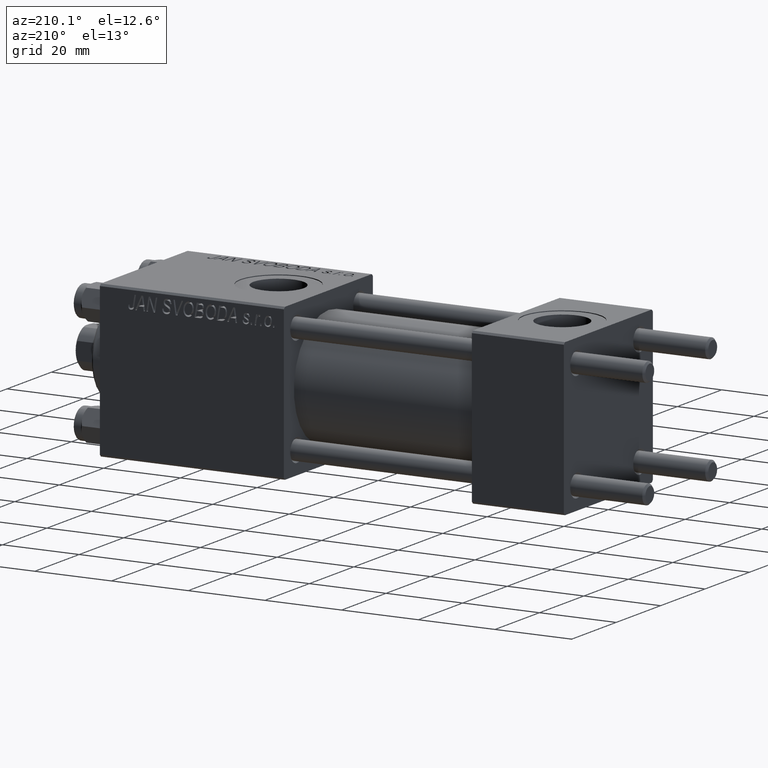
[diagram: clean part render]
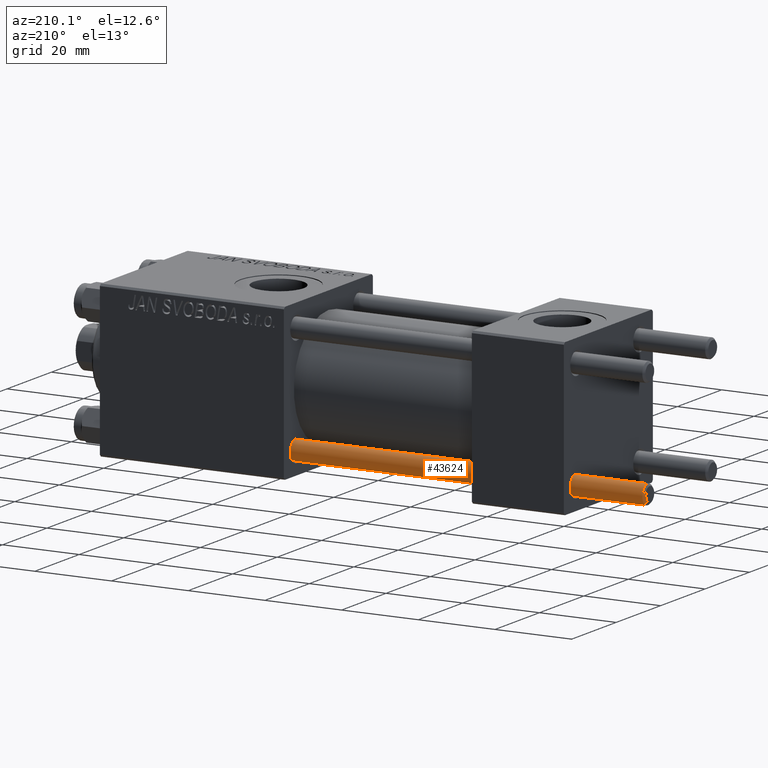
[diagram: same view with one face highlighted and labeled with its STEP entity id]
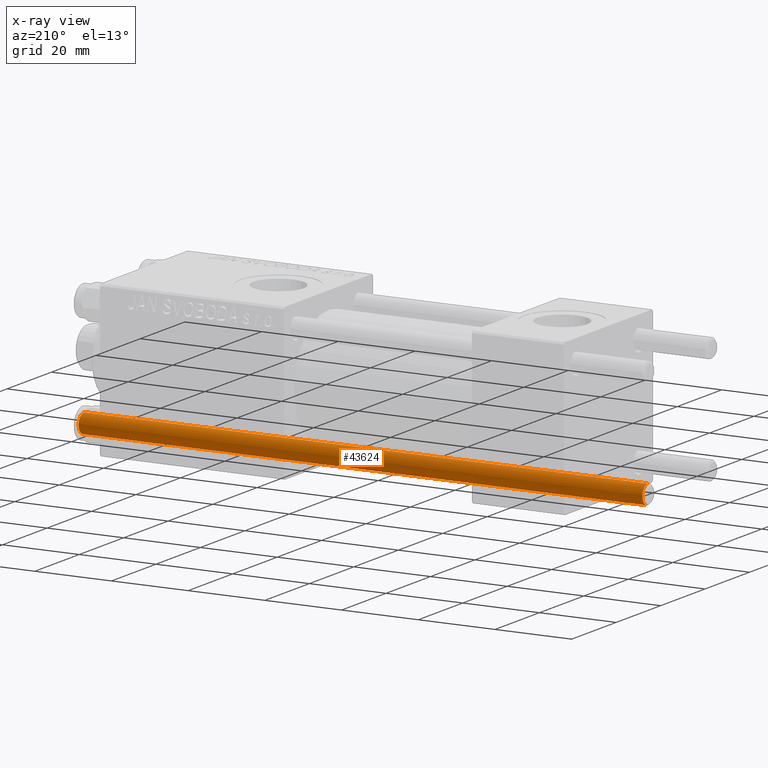
[diagram: x-ray of the same camera — body ghosted, the highlighted face saturated]
A machine part, auxiliary view. The second image highlights one B-rep face of the part: STEP entity #43624.
The next image is the same camera in x-ray: the body ghosted, the highlighted face saturated — about 0% of this face is hidden behind the body in this view.
In plain terms, the highlighted cylindrical surface (edge-blend (fillet) strip) has radius 2.5 mm, axis along (1, 0, -0).
Its self-contained STEP definition (entity closure, byte-faithful):
#3762 = CARTESIAN_POINT ( 'NONE',  ( 0.000000000000000000, 0.000000000000000000, 0.5000000000000004441 ) ) ;
#4010 = ORIENTED_EDGE ( 'NONE', *, *, #10004, .T. ) ;
#5681 = VECTOR ( 'NONE', #43781, 1000.000000000000000 ) ;
#6585 = DIRECTION ( 'NONE',  ( -0.000000000000000000, -0.000000000000000000, -1.000000000000000000 ) ) ;
#9428 = CARTESIAN_POINT ( 'NONE',  ( -2.500000000000000000, 0.000000000000000000, 0.5000000000000004441 ) ) ;
#10004 = EDGE_CURVE ( 'NONE', #19017, #11506, #32665, .T. ) ;
#11506 = VERTEX_POINT ( 'NONE', #28576 ) ;
#11725 = AXIS2_PLACEMENT_3D ( 'NONE', #20473, #35890, #16700 ) ;
#12433 = CIRCLE ( 'NONE', #21305, 2.500000000000000000 ) ;
#13507 = VERTEX_POINT ( 'NONE', #9428 ) ;
#16700 = DIRECTION ( 'NONE',  ( 1.000000000000000000, 0.000000000000000000, 0.000000000000000000 ) ) ;
#17019 = LINE ( 'NONE', #29382, #5681 ) ;
#17702 = LINE ( 'NONE', #44972, #26602 ) ;
#18038 = EDGE_CURVE ( 'NONE', #41165, #13507, #12433, .T. ) ;
#18669 = AXIS2_PLACEMENT_3D ( 'NONE', #41838, #26433, #38298 ) ;
#19017 = VERTEX_POINT ( 'NONE', #38851 ) ;
#19646 = DIRECTION ( 'NONE',  ( 1.000000000000000000, 0.000000000000000000, 0.000000000000000000 ) ) ;
#19948 = CARTESIAN_POINT ( 'NONE',  ( 2.500000000000000000, 3.061616997868383141E-16, 0.5000000000000004441 ) ) ;
#20473 = CARTESIAN_POINT ( 'NONE',  ( 0.000000000000000000, 0.000000000000000000, 147.5000000000000284 ) ) ;
#21305 = AXIS2_PLACEMENT_3D ( 'NONE', #3762, #34578, #19646 ) ;
#25926 = CYLINDRICAL_SURFACE ( 'NONE', #18669, 2.500000000000000000 ) ;
#26433 = DIRECTION ( 'NONE',  ( -0.000000000000000000, -0.000000000000000000, -1.000000000000000000 ) ) ;
#26602 = VECTOR ( 'NONE', #6585, 1000.000000000000000 ) ;
#28576 = CARTESIAN_POINT ( 'NONE',  ( 2.500000000000000000, 3.061616997868383141E-16, 147.5000000000000284 ) ) ;
#29382 = CARTESIAN_POINT ( 'NONE',  ( 2.500000000000000000, 3.061616997868383141E-16, 148.0000000000000000 ) ) ;
#29963 = FACE_OUTER_BOUND ( 'NONE', #42002, .T. ) ;
#31452 = ORIENTED_EDGE ( 'NONE', *, *, #40058, .F. ) ;
#32665 = CIRCLE ( 'NONE', #11725, 2.500000000000000000 ) ;
#34578 = DIRECTION ( 'NONE',  ( -0.000000000000000000, -0.000000000000000000, 1.000000000000000000 ) ) ;
#35890 = DIRECTION ( 'NONE',  ( 0.000000000000000000, 0.000000000000000000, -1.000000000000000000 ) ) ;
#38298 = DIRECTION ( 'NONE',  ( -1.000000000000000000, 0.000000000000000000, 0.000000000000000000 ) ) ;
#38851 = CARTESIAN_POINT ( 'NONE',  ( -2.500000000000000000, 0.000000000000000000, 147.5000000000000284 ) ) ;
#39140 = ORIENTED_EDGE ( 'NONE', *, *, #40945, .T. ) ;
#40058 = EDGE_CURVE ( 'NONE', #19017, #13507, #17702, .T. ) ;
#40945 = EDGE_CURVE ( 'NONE', #11506, #41165, #17019, .T. ) ;
#41165 = VERTEX_POINT ( 'NONE', #19948 ) ;
#41323 = ORIENTED_EDGE ( 'NONE', *, *, #18038, .T. ) ;
#41838 = CARTESIAN_POINT ( 'NONE',  ( 0.000000000000000000, 0.000000000000000000, 148.0000000000000000 ) ) ;
#42002 = EDGE_LOOP ( 'NONE', ( #4010, #39140, #41323, #31452 ) ) ;
#43624 = ADVANCED_FACE ( 'NONE', ( #29963 ), #25926, .T. ) ;
#43781 = DIRECTION ( 'NONE',  ( -0.000000000000000000, -0.000000000000000000, -1.000000000000000000 ) ) ;
#44972 = CARTESIAN_POINT ( 'NONE',  ( -2.500000000000000000, 0.000000000000000000, 148.0000000000000000 ) ) ;